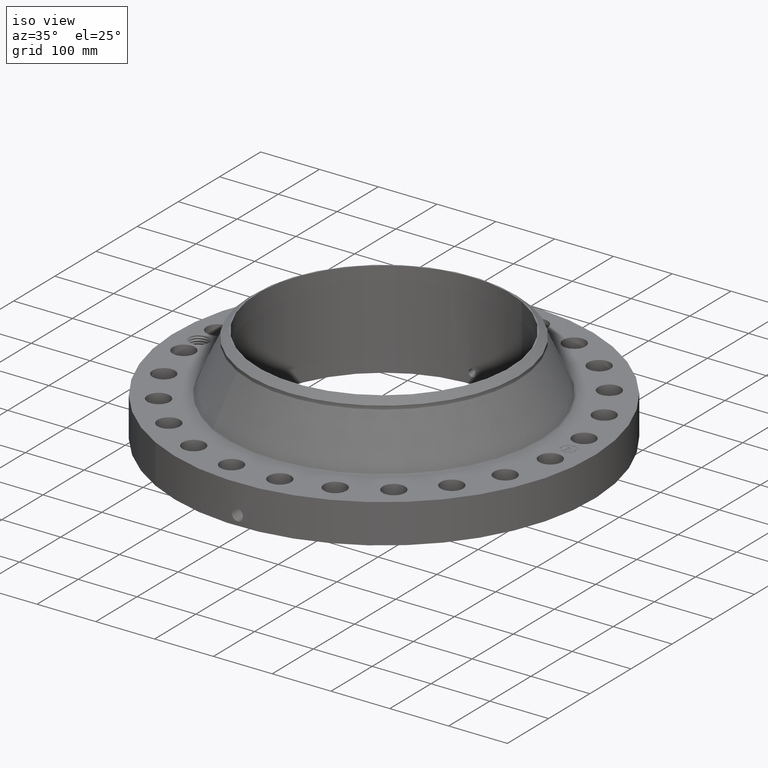
[diagram: clean part render]
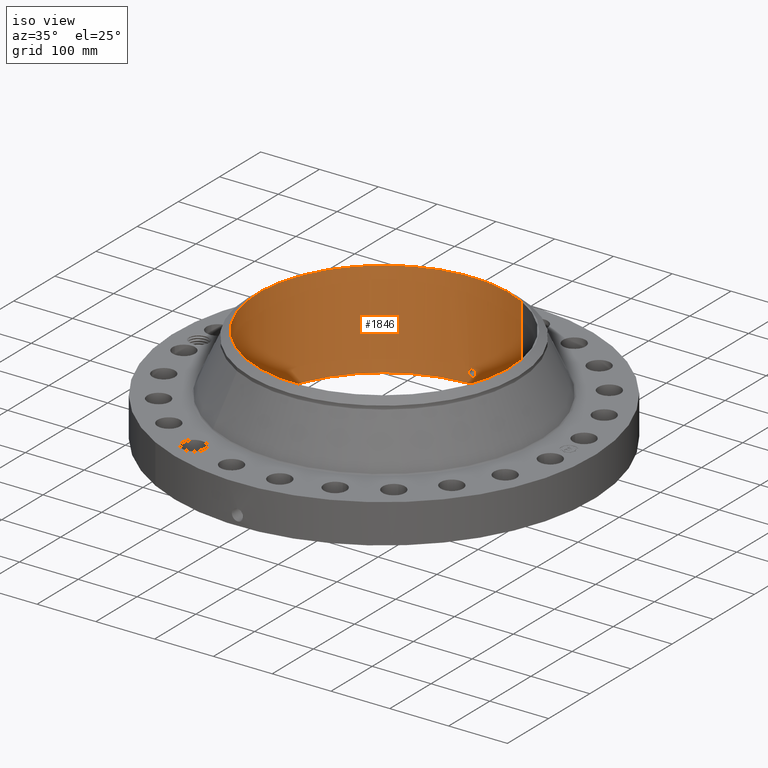
[diagram: same view with one face highlighted and labeled with its STEP entity id]
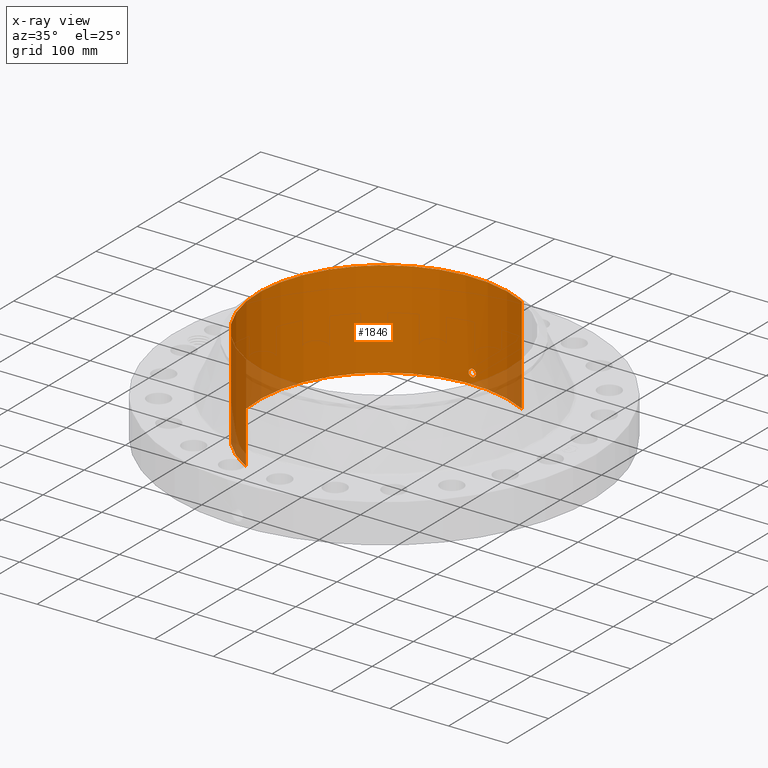
[diagram: x-ray of the same camera — body ghosted, the highlighted face saturated]
A machine part, iso view. The second image highlights one B-rep face of the part: STEP entity #1846.
The next image is the same camera in x-ray: the body ghosted, the highlighted face saturated — about 8% of this face is hidden behind the body in this view.
In plain terms, the highlighted cylindrical surface (partial cylindrical patch) has radius 214.325 mm, axis along (0, 0, -1).
Its self-contained STEP definition (entity closure, byte-faithful):
#259=AXIS2_PLACEMENT_3D('Circle Axis2P3D',#257,#258,$) ;
#1723=AXIS2_PLACEMENT_3D('Cylinder Axis2P3D',#1720,#1721,#1722) ;
#1795=AXIS2_PLACEMENT_3D('Circle Axis2P3D',#1793,#1794,$) ;
#252=CARTESIAN_POINT('Vertex',(4.04539269476,7.40504165726,0.250000000001)) ;
#254=CARTESIAN_POINT('Vertex',(-4.04539269476,-7.40504165726,0.250000000001)) ;
#257=CARTESIAN_POINT('Axis2P3D Location',(0.,0.,0.250000000001)) ;
#1720=CARTESIAN_POINT('Axis2P3D Location',(0.,0.,3.50000000001)) ;
#1729=CARTESIAN_POINT('Vertex',(4.04539269476,7.40504165726,6.75000000003)) ;
#1731=CARTESIAN_POINT('Vertex',(-4.04539269476,-7.40504165726,6.75000000003)) ;
#1734=CARTESIAN_POINT('Line Origine',(4.04539269476,7.40504165726,3.50000000001)) ;
#1739=CARTESIAN_POINT('Line Origine',(-4.04539269476,-7.40504165726,3.50000000001)) ;
#1793=CARTESIAN_POINT('Axis2P3D Location',(0.,0.,6.75000000003)) ;
#1805=CARTESIAN_POINT('Control Point',(0.219395640473,8.43514727515,1.05985638466)) ;
#1806=CARTESIAN_POINT('Control Point',(0.194443133903,8.43579628233,1.10553164156)) ;
#1807=CARTESIAN_POINT('Control Point',(0.157605732691,8.43666208278,1.14471098454)) ;
#1808=CARTESIAN_POINT('Control Point',(0.111109199976,8.4375040906,1.17324258986)) ;
#1809=CARTESIAN_POINT('Control Point',(0.0336747205248,8.43817402589,1.19588238499)) ;
#1810=CARTESIAN_POINT('Control Point',(-0.0446697088637,8.43794253414,1.18805655983)) ;
#1811=CARTESIAN_POINT('Control Point',(-0.0702990810697,8.43776282458,1.18204418702)) ;
#1812=CARTESIAN_POINT('Control Point',(-0.143954735634,8.43696866405,1.15421302444)) ;
#1813=CARTESIAN_POINT('Control Point',(-0.203241998038,8.4356723428,1.09949994798)) ;
#1814=CARTESIAN_POINT('Control Point',(-0.232207790419,8.43482206816,1.05326190372)) ;
#1815=CARTESIAN_POINT('Control Point',(-0.255840191807,8.43412304499,0.97511473191)) ;
#1816=CARTESIAN_POINT('Control Point',(-0.248283344962,8.43434638529,0.895749042612)) ;
#1817=CARTESIAN_POINT('Control Point',(-0.242049554962,8.43453329949,0.869185648985)) ;
#1818=CARTESIAN_POINT('Control Point',(-0.232315821726,8.43481122513,0.843793848498)) ;
#1819=CARTESIAN_POINT('Control Point',(-0.219395640473,8.43514727515,0.820143615352)) ;
#1820=CARTESIAN_POINT('Vertex',(0.219395640473,8.43514727515,1.05985638466)) ;
#1822=CARTESIAN_POINT('Vertex',(-0.219395640473,8.43514727515,0.820143615352)) ;
#1826=CARTESIAN_POINT('Control Point',(-0.219395640473,8.43514727515,0.820143615352)) ;
#1827=CARTESIAN_POINT('Control Point',(-0.194443133909,8.43579628233,0.774468358461)) ;
#1828=CARTESIAN_POINT('Control Point',(-0.15760573271,8.43666208278,0.735289015493)) ;
#1829=CARTESIAN_POINT('Control Point',(-0.111109199943,8.4375040906,0.706757410137)) ;
#1830=CARTESIAN_POINT('Control Point',(-0.0336747205043,8.43817402589,0.684117615014)) ;
#1831=CARTESIAN_POINT('Control Point',(0.0446697088704,8.43794253414,0.69194344018)) ;
#1832=CARTESIAN_POINT('Control Point',(0.0702990810735,8.43776282458,0.697955812991)) ;
#1833=CARTESIAN_POINT('Control Point',(0.143954735677,8.43696866405,0.725786975584)) ;
#1834=CARTESIAN_POINT('Control Point',(0.203241998102,8.4356723428,0.780500052088)) ;
#1835=CARTESIAN_POINT('Control Point',(0.232207790397,8.43482206816,0.82673809621)) ;
#1836=CARTESIAN_POINT('Control Point',(0.255840191844,8.43412304499,0.904885268167)) ;
#1837=CARTESIAN_POINT('Control Point',(0.248283344941,8.43434638529,0.984250957615)) ;
#1838=CARTESIAN_POINT('Control Point',(0.242049555039,8.43453329949,1.01081435082)) ;
#1839=CARTESIAN_POINT('Control Point',(0.232315821777,8.43481122513,1.03620615142)) ;
#1840=CARTESIAN_POINT('Control Point',(0.219395640473,8.43514727515,1.05985638466)) ;
#258=DIRECTION('Axis2P3D Direction',(0.,0.,-0.0393700787402)) ;
#1721=DIRECTION('Axis2P3D Direction',(0.,0.,-0.0393700787402)) ;
#1722=DIRECTION('Axis2P3D XDirection',(-0.0188750212049,-0.0345504945626,0.)) ;
#1735=DIRECTION('Vector Direction',(0.,0.,-0.0393700787402)) ;
#1740=DIRECTION('Vector Direction',(0.,0.,-0.0393700787402)) ;
#1794=DIRECTION('Axis2P3D Direction',(0.,0.,-0.0393700787402)) ;
#1736=VECTOR('Line Direction',#1735,0.0393700787402) ;
#1741=VECTOR('Line Direction',#1740,0.0393700787402) ;
#1799=ORIENTED_EDGE('',*,*,#1797,.F.) ;
#1800=ORIENTED_EDGE('',*,*,#1743,.T.) ;
#1801=ORIENTED_EDGE('',*,*,#261,.T.) ;
#1802=ORIENTED_EDGE('',*,*,#1738,.F.) ;
#1843=ORIENTED_EDGE('',*,*,#1824,.F.) ;
#1844=ORIENTED_EDGE('',*,*,#1841,.F.) ;
#1845=FACE_BOUND('',#1842,.T.) ;
#1846=ADVANCED_FACE('PartBody',(#1803,#1845),#1724,.F.) ;
#1804=B_SPLINE_CURVE_WITH_KNOTS('',5,(#1805,#1806,#1807,#1808,#1809,#1810,#1811,#1812,#1813,#1814,#1815,#1816,#1817,#1818,#1819),.UNSPECIFIED.,.F.,.U.,(6,3,3,3,6),(0.,9.34857668862,14.0228314566,23.3728657124,28.2134738063),.UNSPECIFIED.) ;
#1825=B_SPLINE_CURVE_WITH_KNOTS('',5,(#1826,#1827,#1828,#1829,#1830,#1831,#1832,#1833,#1834,#1835,#1836,#1837,#1838,#1839,#1840),.UNSPECIFIED.,.F.,.U.,(6,3,3,3,6),(0.,9.34857668605,14.0228314541,23.3728657172,28.2134738303),.UNSPECIFIED.) ;
#260=CIRCLE('generated circle',#259,8.43800000003) ;
#1796=CIRCLE('generated circle',#1795,8.43800000003) ;
#1724=CYLINDRICAL_SURFACE('generated cylinder',#1723,8.43800000003) ;
#261=EDGE_CURVE('',#255,#253,#260,.T.) ;
#1738=EDGE_CURVE('',#1730,#253,#1737,.T.) ;
#1743=EDGE_CURVE('',#1732,#255,#1742,.T.) ;
#1797=EDGE_CURVE('',#1732,#1730,#1796,.T.) ;
#1824=EDGE_CURVE('',#1821,#1823,#1804,.T.) ;
#1841=EDGE_CURVE('',#1823,#1821,#1825,.T.) ;
#1798=EDGE_LOOP('',(#1799,#1800,#1801,#1802)) ;
#1842=EDGE_LOOP('',(#1843,#1844)) ;
#1803=FACE_OUTER_BOUND('',#1798,.T.) ;
#1737=LINE('Line',#1734,#1736) ;
#1742=LINE('Line',#1739,#1741) ;
#253=VERTEX_POINT('',#252) ;
#255=VERTEX_POINT('',#254) ;
#1730=VERTEX_POINT('',#1729) ;
#1732=VERTEX_POINT('',#1731) ;
#1821=VERTEX_POINT('',#1820) ;
#1823=VERTEX_POINT('',#1822) ;